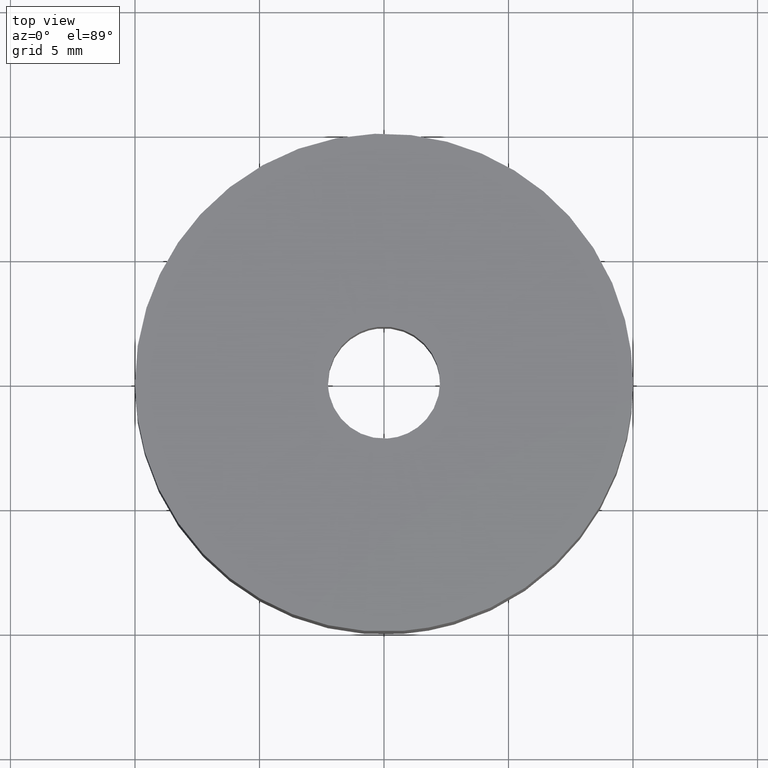
[diagram: clean part render]
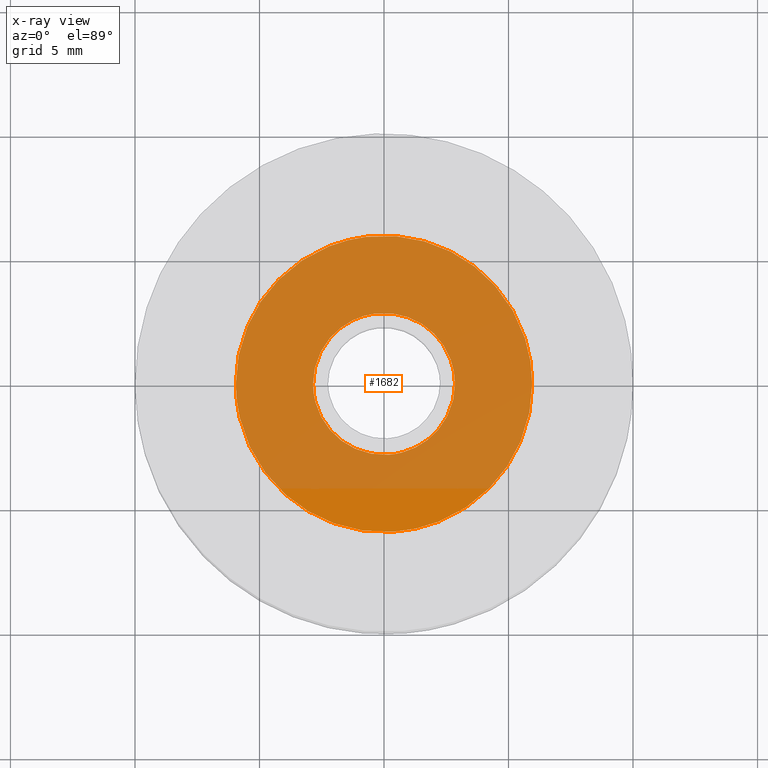
[diagram: x-ray — body ghosted, one internal face saturated and labeled with its STEP entity id]
A machine part, top view, then the same camera in x-ray: the body is ghosted and one INTERNAL B-rep face — a face not visible from any outside direction — is saturated and labeled: STEP entity #1682.
In plain terms, the highlighted face is a freeform B-spline surface patch.
Its self-contained STEP definition (entity closure, byte-faithful):
#1130=CARTESIAN_POINT('',(-0.336397568788283,2.830077150134486,4.800000000000001));
#1131=VERTEX_POINT('',#1130);
#1137=CARTESIAN_POINT('',(2.850000000000000,0.0,4.800000000000000));
#1138=VERTEX_POINT('',#1137);
#1139=CARTESIAN_POINT('',(-0.336397568788284,2.830077150134486,4.800000000000002));
#1140=CARTESIAN_POINT('',(-0.168788741024640,2.850000000000001,4.800000000000000));
#1141=CARTESIAN_POINT('',(0.0,2.850000000000000,4.800000000000000));
#1142=CARTESIAN_POINT('',(2.850000000000000,2.850000000000000,4.800000000000001));
#1143=CARTESIAN_POINT('',(2.850000000000000,0.0,4.800000000000000));
#1151=(BOUNDED_CURVE()B_SPLINE_CURVE(2,(#1139,#1140,#1141,#1142,#1143),.UNSPECIFIED.,.F.,.U.)B_SPLINE_CURVE_WITH_KNOTS((3,2,3),(0.229562473513671,0.250000000000000,0.500000000000000),.UNSPECIFIED.)CURVE()GEOMETRIC_REPRESENTATION_ITEM()RATIONAL_B_SPLINE_CURVE((0.956026754184018,0.976055948331336,1.0,0.707106781186547,1.0))REPRESENTATION_ITEM(''));
#1152=EDGE_CURVE('',#1131,#1138,#1151,.T.);
#1154=CARTESIAN_POINT('',(0.173987284913211,-2.844684239891559,4.799999999999999));
#1155=VERTEX_POINT('',#1154);
#1156=CARTESIAN_POINT('',(2.850000000000000,0.0,4.800000000000000));
#1157=CARTESIAN_POINT('',(2.850000000000000,-2.681013284724888,4.800000000000000));
#1158=CARTESIAN_POINT('',(0.173987284913211,-2.844684239891559,4.799999999999999));
#1166=(BOUNDED_CURVE()B_SPLINE_CURVE(2,(#1156,#1157,#1158),.UNSPECIFIED.,.F.,.U.)B_SPLINE_CURVE_WITH_KNOTS((3,3),(0.500000000000000,0.739333026098112),.UNSPECIFIED.)CURVE()GEOMETRIC_REPRESENTATION_ITEM()RATIONAL_B_SPLINE_CURVE((1.0,0.719603918471039,0.976072178529112))REPRESENTATION_ITEM(''));
#1167=EDGE_CURVE('',#1138,#1155,#1166,.T.);
#1241=CARTESIAN_POINT('',(-2.850000000000000,0.0,4.800000000000000));
#1242=VERTEX_POINT('',#1241);
#1243=CARTESIAN_POINT('',(0.173987284913211,-2.844684239891559,4.799999999999999));
#1244=CARTESIAN_POINT('',(0.087074847544508,-2.850000000000000,4.800000000000001));
#1245=CARTESIAN_POINT('',(0.0,-2.850000000000000,4.800000000000000));
#1246=CARTESIAN_POINT('',(-2.850000000000000,-2.850000000000000,4.800000000000001));
#1247=CARTESIAN_POINT('',(-2.850000000000000,0.0,4.800000000000000));
#1255=(BOUNDED_CURVE()B_SPLINE_CURVE(2,(#1243,#1244,#1245,#1246,#1247),.UNSPECIFIED.,.F.,.U.)B_SPLINE_CURVE_WITH_KNOTS((3,2,3),(0.739333026098112,0.750000000000000,1.0),.UNSPECIFIED.)CURVE()GEOMETRIC_REPRESENTATION_ITEM()RATIONAL_B_SPLINE_CURVE((0.976072178529112,0.987502862715508,1.0,0.707106781186547,1.0))REPRESENTATION_ITEM(''));
#1256=EDGE_CURVE('',#1155,#1242,#1255,.T.);
#1258=CARTESIAN_POINT('',(-2.850000000000000,0.0,4.800000000000000));
#1259=CARTESIAN_POINT('',(-2.850000000000000,2.531297398931633,4.799999999999999));
#1260=CARTESIAN_POINT('',(-0.336397568788284,2.830077150134486,4.800000000000002));
#1268=(BOUNDED_CURVE()B_SPLINE_CURVE(2,(#1258,#1259,#1260),.UNSPECIFIED.,.F.,.U.)B_SPLINE_CURVE_WITH_KNOTS((3,3),(0.0,0.229562473513671),.UNSPECIFIED.)CURVE()GEOMETRIC_REPRESENTATION_ITEM()RATIONAL_B_SPLINE_CURVE((1.0,0.731050832855212,0.956026754184018))REPRESENTATION_ITEM(''));
#1269=EDGE_CURVE('',#1242,#1131,#1268,.T.);
#1297=CARTESIAN_POINT('',(-0.702296808931258,5.908407500512880,4.800000000000043));
#1298=VERTEX_POINT('',#1297);
#1299=CARTESIAN_POINT('',(5.950000000000000,0.0,4.800000000000000));
#1300=VERTEX_POINT('',#1299);
#1301=CARTESIAN_POINT('',(-0.702296808931258,5.908407500512880,4.800000000000043));
#1302=CARTESIAN_POINT('',(-0.352380031885536,5.950000000000000,4.800000000000001));
#1303=CARTESIAN_POINT('',(0.0,5.950000000000000,4.800000000000000));
#1304=CARTESIAN_POINT('',(5.950000000000001,5.950000000000001,4.800000000000001));
#1305=CARTESIAN_POINT('',(5.950000000000000,0.0,4.800000000000000));
#1313=(BOUNDED_CURVE()B_SPLINE_CURVE(2,(#1301,#1302,#1303,#1304,#1305),.UNSPECIFIED.,.F.,.U.)B_SPLINE_CURVE_WITH_KNOTS((3,2,3),(0.229562670518363,0.250000000000000,0.500000000000000),.UNSPECIFIED.)CURVE()GEOMETRIC_REPRESENTATION_ITEM()RATIONAL_B_SPLINE_CURVE((0.956027140321640,0.976056179136689,1.0,0.707106781186547,1.0))REPRESENTATION_ITEM(''));
#1314=EDGE_CURVE('',#1298,#1300,#1313,.T.);
#1355=CARTESIAN_POINT('',(0.363232011452330,-5.938902466433499,4.800000000000136));
#1356=VERTEX_POINT('',#1355);
#1362=CARTESIAN_POINT('',(5.950000000000000,0.0,4.800000000000000));
#1363=CARTESIAN_POINT('',(5.950000000000000,-5.597207517670833,4.800000000000000));
#1364=CARTESIAN_POINT('',(0.363232011452330,-5.938902466433499,4.800000000000136));
#1372=(BOUNDED_CURVE()B_SPLINE_CURVE(2,(#1362,#1363,#1364),.UNSPECIFIED.,.F.,.U.)B_SPLINE_CURVE_WITH_KNOTS((3,3),(0.500000000000000,0.739333159771383),.UNSPECIFIED.)CURVE()GEOMETRIC_REPRESENTATION_ITEM()RATIONAL_B_SPLINE_CURVE((1.0,0.719603761863061,0.976072465016705))REPRESENTATION_ITEM(''));
#1373=EDGE_CURVE('',#1300,#1356,#1372,.T.);
#1396=CARTESIAN_POINT('',(-5.950000000000000,0.0,4.800000000000000));
#1397=VERTEX_POINT('',#1396);
#1398=CARTESIAN_POINT('',(-5.950000000000000,0.0,4.800000000000000));
#1399=CARTESIAN_POINT('',(-5.950000000000000,5.284644632944591,4.800000000000000));
#1400=CARTESIAN_POINT('',(-0.702296808931258,5.908407500512880,4.800000000000043));
#1408=(BOUNDED_CURVE()B_SPLINE_CURVE(2,(#1398,#1399,#1400),.UNSPECIFIED.,.F.,.U.)B_SPLINE_CURVE_WITH_KNOTS((3,3),(0.0,0.229562670518363),.UNSPECIFIED.)CURVE()GEOMETRIC_REPRESENTATION_ITEM()RATIONAL_B_SPLINE_CURVE((1.0,0.731050602049858,0.956027140321640))REPRESENTATION_ITEM(''));
#1409=EDGE_CURVE('',#1397,#1298,#1408,.T.);
#1411=CARTESIAN_POINT('',(0.363232011452330,-5.938902466433499,4.800000000000136));
#1412=CARTESIAN_POINT('',(0.181785532705309,-5.950000000000001,4.799999999999999));
#1413=CARTESIAN_POINT('',(0.0,-5.950000000000000,4.800000000000000));
#1414=CARTESIAN_POINT('',(-5.950000000000001,-5.950000000000001,4.800000000000001));
#1415=CARTESIAN_POINT('',(-5.950000000000000,0.0,4.800000000000000));
#1423=(BOUNDED_CURVE()B_SPLINE_CURVE(2,(#1411,#1412,#1413,#1414,#1415),.UNSPECIFIED.,.F.,.U.)B_SPLINE_CURVE_WITH_KNOTS((3,2,3),(0.739333159771383,0.750000000000000,1.0),.UNSPECIFIED.)CURVE()GEOMETRIC_REPRESENTATION_ITEM()RATIONAL_B_SPLINE_CURVE((0.976072465016705,0.987503019323487,1.0,0.707106781186547,1.0))REPRESENTATION_ITEM(''));
#1424=EDGE_CURVE('',#1356,#1397,#1423,.T.);
#1665=CARTESIAN_POINT('',(-6.544404822711646,-6.544260270932831,4.800000000000000));
#1666=CARTESIAN_POINT('',(6.544404397134482,-6.544260270932831,4.800000000000000));
#1667=CARTESIAN_POINT('',(-6.544404822711646,6.544296764174617,4.800000000000000));
#1668=CARTESIAN_POINT('',(6.544404397134482,6.544296764174617,4.800000000000000));
#1669=B_SPLINE_SURFACE_WITH_KNOTS('',1,1,((#1665,#1667),(#1666,#1668)),.UNSPECIFIED.,.F.,.F.,.U.,(2,2),(2,2),(0.0,13.088809219846130),(0.0,13.088557035107449),.UNSPECIFIED.);
#1670=ORIENTED_EDGE('',*,*,#1409,.T.);
#1671=ORIENTED_EDGE('',*,*,#1314,.T.);
#1672=ORIENTED_EDGE('',*,*,#1373,.T.);
#1673=ORIENTED_EDGE('',*,*,#1424,.T.);
#1674=EDGE_LOOP('',(#1670,#1671,#1672,#1673));
#1675=FACE_OUTER_BOUND('',#1674,.T.);
#1676=ORIENTED_EDGE('',*,*,#1167,.F.);
#1677=ORIENTED_EDGE('',*,*,#1152,.F.);
#1678=ORIENTED_EDGE('',*,*,#1269,.F.);
#1679=ORIENTED_EDGE('',*,*,#1256,.F.);
#1680=EDGE_LOOP('',(#1676,#1677,#1678,#1679));
#1681=FACE_BOUND('',#1680,.T.);
#1682=ADVANCED_FACE('',(#1675,#1681),#1669,.F.);